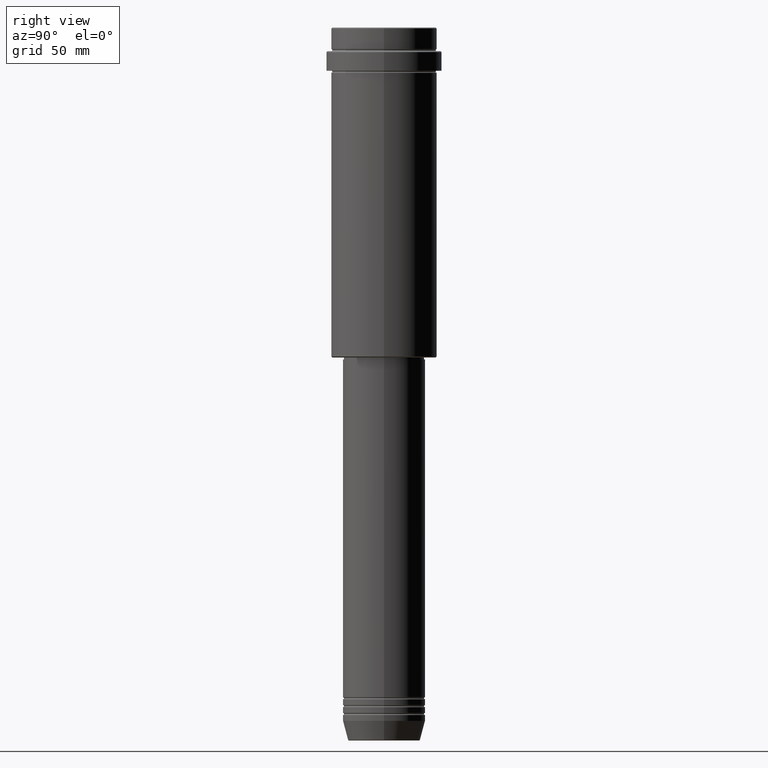
[diagram: clean part render]
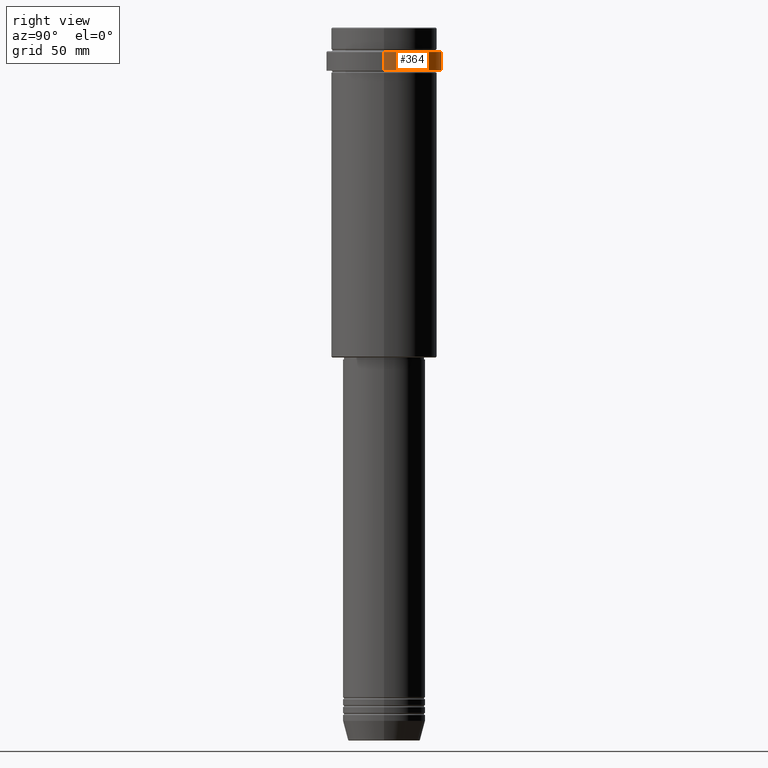
[diagram: same view with one face highlighted and labeled with its STEP entity id]
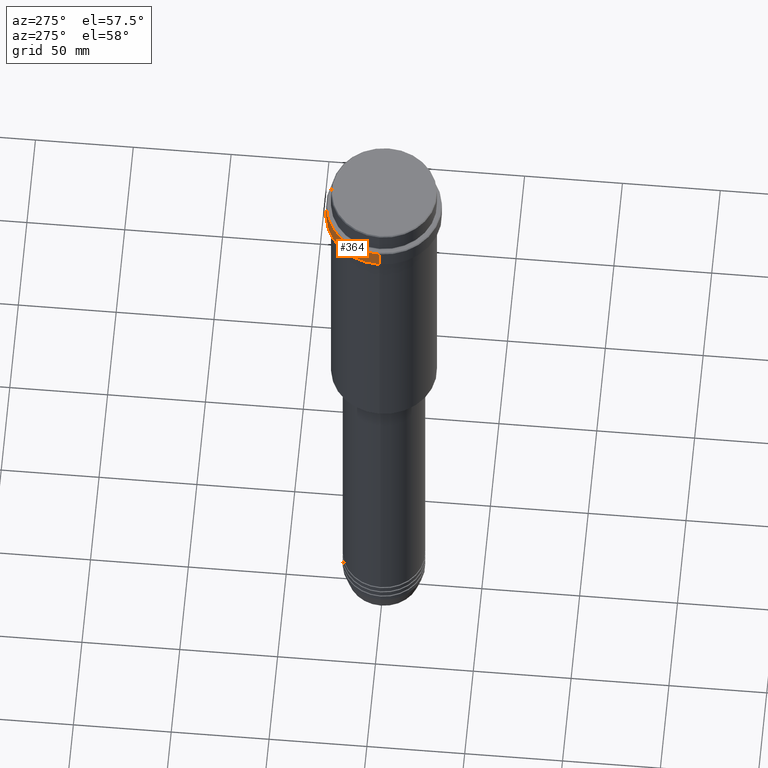
[diagram: same view with one face highlighted and labeled with its STEP entity id]
A machine part, right view. The second image highlights one B-rep face of the part: STEP entity #364.
A second angle (auxiliary view) of the same face is appended — the face is thin or edge-on in the first view.
In plain terms, the highlighted cylindrical surface (partial cylindrical patch) has radius 29.5 mm, axis along (-0, -0, 1).
Its self-contained STEP definition (entity closure, byte-faithful):
#3 = AXIS2_PLACEMENT_3D ( 'NONE', #582, #1016, #38 ) ;
#38 = DIRECTION ( 'NONE',  ( 1.000000000000000000, 0.000000000000000000, 0.000000000000000000 ) ) ;
#236 = ORIENTED_EDGE ( 'NONE', *, *, #241, .T. ) ;
#241 = EDGE_CURVE ( 'NONE', #460, #1004, #1008, .T. ) ;
#267 = CARTESIAN_POINT ( 'NONE',  ( -29.49999999999999645, 3.612708057484690815E-15, -22.00000000000000711 ) ) ;
#278 = VECTOR ( 'NONE', #968, 1000.000000000000000 ) ;
#335 = ORIENTED_EDGE ( 'NONE', *, *, #942, .T. ) ;
#352 = VERTEX_POINT ( 'NONE', #371 ) ;
#364 = ADVANCED_FACE ( 'NONE', ( #1150 ), #1365, .T. ) ;
#371 = CARTESIAN_POINT ( 'NONE',  ( -29.50000000000000000, 3.612708057484691604E-15, -12.50000000000006040 ) ) ;
#376 = EDGE_CURVE ( 'NONE', #352, #1257, #625, .T. ) ;
#460 = VERTEX_POINT ( 'NONE', #843 ) ;
#480 = CARTESIAN_POINT ( 'NONE',  ( 0.000000000000000000, 0.000000000000000000, -22.00000000000000711 ) ) ;
#498 = CARTESIAN_POINT ( 'NONE',  ( -29.50000000000000000, 3.612708057484691604E-15, 0.000000000000000000 ) ) ;
#516 = VECTOR ( 'NONE', #621, 1000.000000000000000 ) ;
#582 = CARTESIAN_POINT ( 'NONE',  ( 0.000000000000000000, 0.000000000000000000, -12.50000000000006040 ) ) ;
#593 = DIRECTION ( 'NONE',  ( 1.000000000000000000, 0.000000000000000000, 0.000000000000000000 ) ) ;
#621 = DIRECTION ( 'NONE',  ( -0.000000000000000000, -0.000000000000000000, 1.000000000000000000 ) ) ;
#625 = CIRCLE ( 'NONE', #3, 29.50000000000000000 ) ;
#681 = EDGE_LOOP ( 'NONE', ( #236, #335, #963, #860 ) ) ;
#686 = CARTESIAN_POINT ( 'NONE',  ( 0.000000000000000000, 0.000000000000000000, 0.000000000000000000 ) ) ;
#749 = CARTESIAN_POINT ( 'NONE',  ( 29.50000000000000000, 0.000000000000000000, 0.000000000000000000 ) ) ;
#814 = DIRECTION ( 'NONE',  ( -0.000000000000000000, -0.000000000000000000, 1.000000000000000000 ) ) ;
#820 = DIRECTION ( 'NONE',  ( 1.000000000000000000, 0.000000000000000000, 0.000000000000000000 ) ) ;
#840 = LINE ( 'NONE', #498, #516 ) ;
#843 = CARTESIAN_POINT ( 'NONE',  ( 29.49999999999999645, 0.000000000000000000, -22.00000000000000711 ) ) ;
#860 = ORIENTED_EDGE ( 'NONE', *, *, #1124, .F. ) ;
#906 = CARTESIAN_POINT ( 'NONE',  ( 29.50000000000000000, 0.000000000000000000, -12.50000000000006040 ) ) ;
#942 = EDGE_CURVE ( 'NONE', #1004, #352, #840, .T. ) ;
#963 = ORIENTED_EDGE ( 'NONE', *, *, #376, .T. ) ;
#968 = DIRECTION ( 'NONE',  ( -0.000000000000000000, -0.000000000000000000, 1.000000000000000000 ) ) ;
#1004 = VERTEX_POINT ( 'NONE', #267 ) ;
#1008 = CIRCLE ( 'NONE', #1055, 29.49999999999999645 ) ;
#1016 = DIRECTION ( 'NONE',  ( 0.000000000000000000, 0.000000000000000000, -1.000000000000000000 ) ) ;
#1055 = AXIS2_PLACEMENT_3D ( 'NONE', #480, #814, #593 ) ;
#1120 = DIRECTION ( 'NONE',  ( -0.000000000000000000, -0.000000000000000000, 1.000000000000000000 ) ) ;
#1124 = EDGE_CURVE ( 'NONE', #460, #1257, #1176, .T. ) ;
#1150 = FACE_OUTER_BOUND ( 'NONE', #681, .T. ) ;
#1176 = LINE ( 'NONE', #749, #278 ) ;
#1235 = AXIS2_PLACEMENT_3D ( 'NONE', #686, #1120, #820 ) ;
#1257 = VERTEX_POINT ( 'NONE', #906 ) ;
#1365 = CYLINDRICAL_SURFACE ( 'NONE', #1235, 29.50000000000000000 ) ;